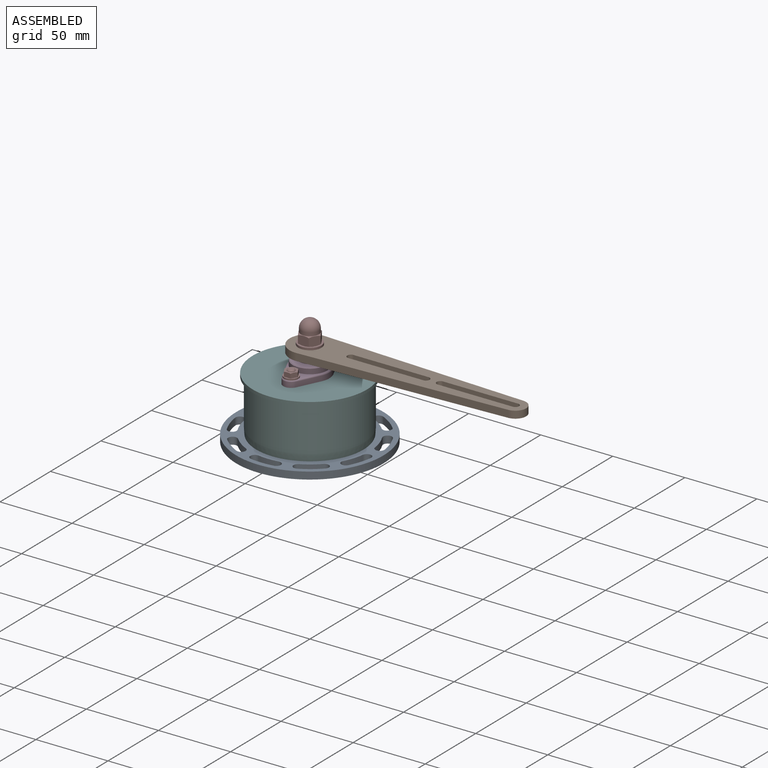
[diagram: assembled view]
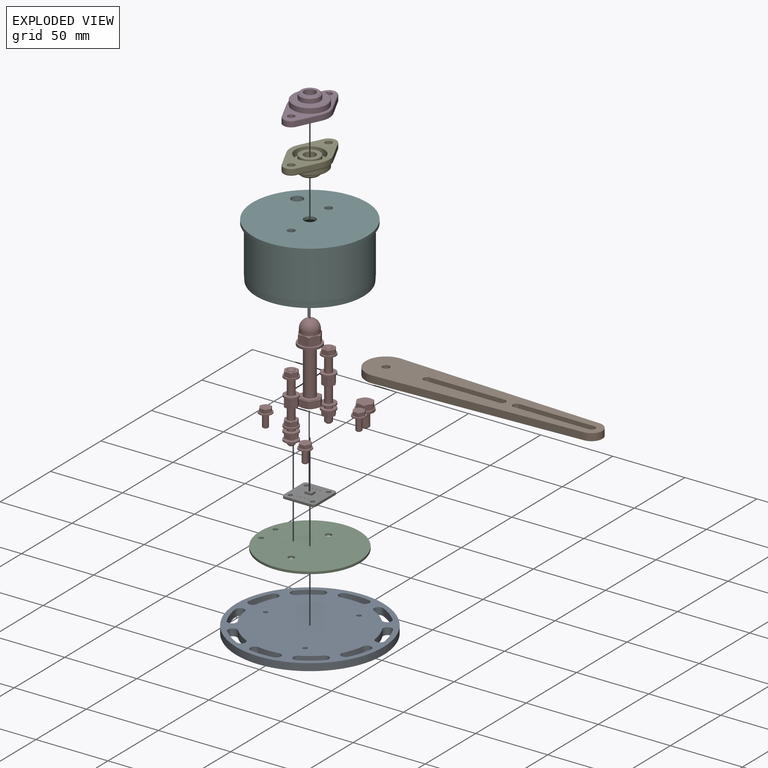
[diagram: exploded view]
GUIDED TOUR — FREECAD ASSEMBLY "RuderlageV2"

This assembly has 8 components, labeled P0..P7 below (a component is one placed body or linked part; the same part can appear more than once), held together by 0 modeled joints plus 12 derived contact edges. A joint is a constraint between two components; its type names the relative motion it leaves free:
  CONTACT — a derived adjacency edge — the two components touch in the source model (clearance under 2% of the assembly's diagonal); it is measured from the geometry, not a modeled constraint.
Axis/direction vectors are unit vectors and 'through' points are millimeter coordinates, both in the assembly's world frame.

MATES
  1. CONTACT "contact_0_5": P0 <-> P5, contact direction (0.000, 0.000, 1.000) through (-33.98, 0.00, 0.00) mm (derived from contact, not a modeled constraint)
  2. CONTACT "contact_0_7": P0 <-> P7, contact direction (0.000, 0.000, 1.000) through (8.93, 46.67, 0.00) mm (derived from contact, not a modeled constraint)
  3. CONTACT "contact_1_3": P1 <-> P3, contact direction (0.000, 0.000, -1.000) through (-2.27, -2.33, 50.91) mm (derived from contact, not a modeled constraint)
  4. CONTACT "contact_1_7": P1 <-> P7, contact direction (0.000, 0.000, -1.000) through (-0.75, -3.27, 55.95) mm (derived from contact, not a modeled constraint)
  5. CONTACT "contact_2_7": P2 <-> P7, contact direction (0.000, 0.000, 1.000) through (0.06, 20.87, 9.62) mm (derived from contact, not a modeled constraint)
  6. CONTACT "contact_3_4": P3 <-> P4, contact direction (0.000, 0.000, -1.000) through (-12.45, 5.23, 37.26) mm (derived from contact, not a modeled constraint)
  7. CONTACT "contact_3_5": P3 <-> P5, contact direction (0.000, 0.000, -1.000) through (-0.78, -16.18, 38.32) mm (derived from contact, not a modeled constraint)
  8. CONTACT "contact_3_7": P3 <-> P7, contact direction (0.000, 0.000, -1.000) through (0.12, 23.48, 42.72) mm (derived from contact, not a modeled constraint)
  9. CONTACT "contact_4_5": P4 <-> P5, contact direction (0.000, 0.000, -1.000) through (-0.78, -16.18, 36.19) mm (derived from contact, not a modeled constraint)
  10. CONTACT "contact_4_7": P4 <-> P7, contact direction (0.000, 0.000, -1.000) through (-1.11, -23.35, 31.79) mm (derived from contact, not a modeled constraint)
  11. CONTACT "contact_5_7": P5 <-> P7, contact direction (0.521, -0.108, -0.847) through (6.92, 37.32, 1.92) mm (derived from contact, not a modeled constraint)
  12. CONTACT "contact_6_7": P6 <-> P7, contact direction (0.000, 0.000, 1.000) through (2.37, 1.94, 17.57) mm (derived from contact, not a modeled constraint)

ASSEMBLY ORDER
  1. P7 — the base component [order heuristic]
  2. P5 — core [order heuristic]
  3. P4 — core [order heuristic]
  4. P6 — core [order heuristic]
  5. P2 [order verified]
  6. P3 — core [order heuristic]
  7. P0 — core [order heuristic]
  8. P1 [order verified]
Order-tag legend:
  [order verified] — this step's position reverses a verified removal order: the component was checked to insert without passing through the ones already placed.
  [order heuristic] — the first 6 components form the assembly's core: parts whose collision-free extraction could not be verified, listed in mate-graph order.

Of the 8 components, 7 carry a construction recipe — the FreeCAD feature program (sketches with constraints, then the solid features that consume them) that regenerates the part from scratch, quoted from this document or from the linked companion document it references; the rest are supplied as boundary geometry only. The tour below walks the components in assembly order: each is shown spotlighted twice — in the assembled view, then in the exploded view, where a leader line traces a displaced component back to its assembled socket (components that stay in place when exploded have no leader line; saturated green if recipe-attached, orange if geometry-only; every other component desaturated gray) — followed by its recipe or geometry summary and the mates that hold it.
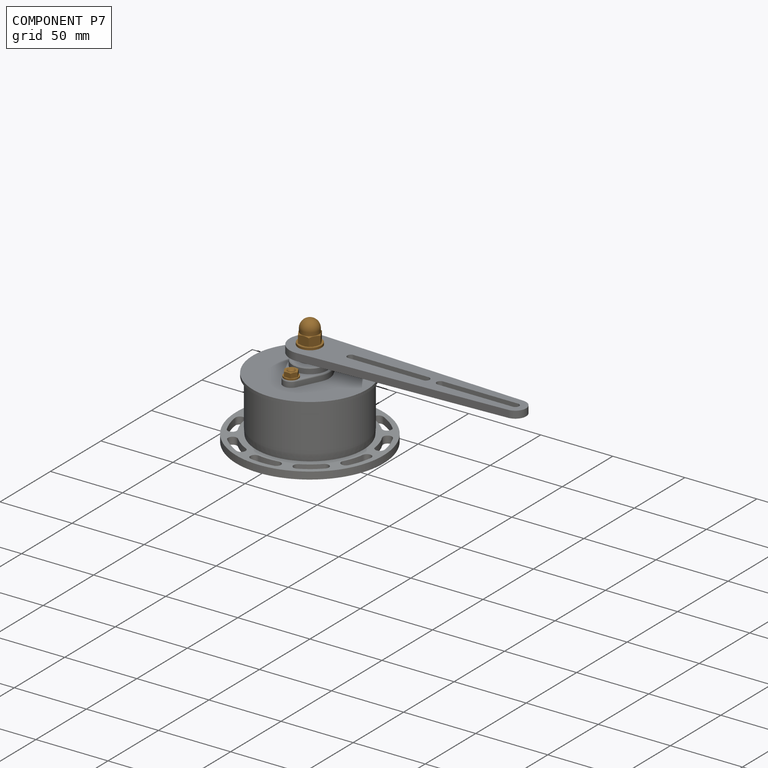
[diagram: component P7 — assembled]
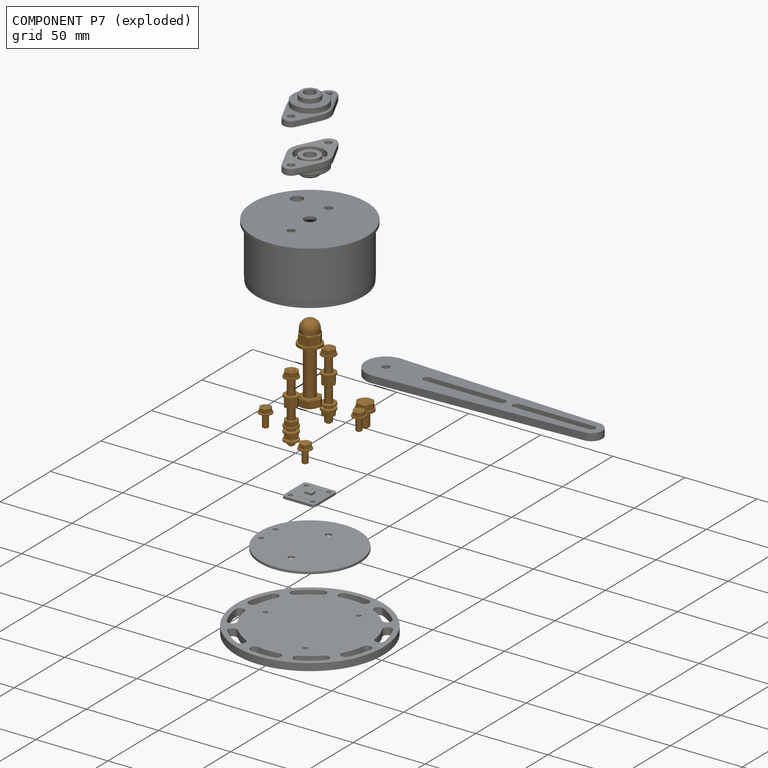
[diagram: component P7 — exploded]
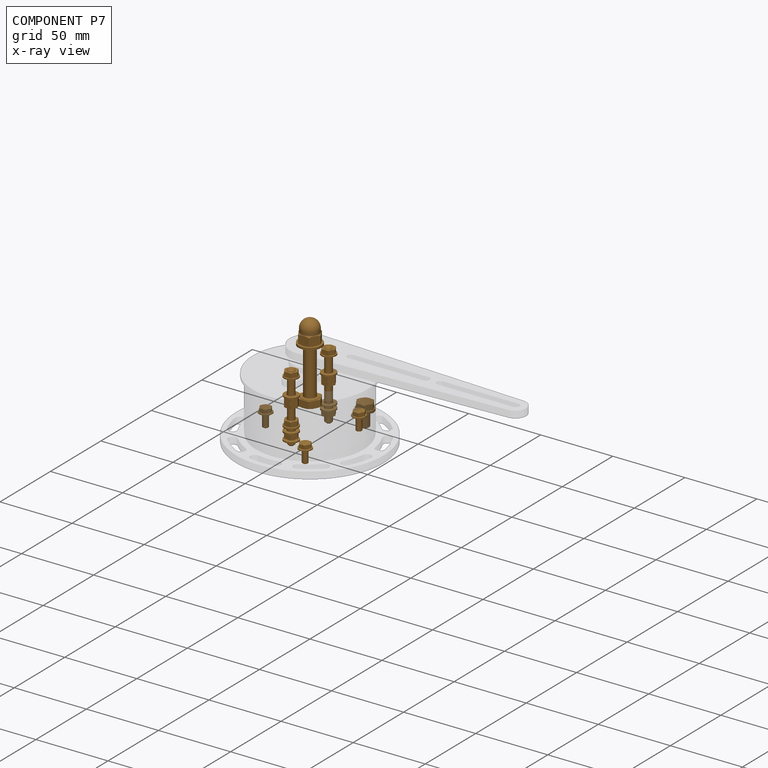
[diagram: component P7 — x-ray view]
COMPONENT P7 — geometry summary ("Fasteners"; no construction recipe available for this part):
  bounding box: 82.9 x 81.0 x 55.1 mm
  tessellated surface: 60,122 triangles
  volume: 9556 mm^3 (3% of its bounding box)
Held by: resting contact with P0 (derived edge); resting contact with P1 (derived edge); resting contact with P2 (derived edge); resting contact with P3 (derived edge); resting contact with P4 (derived edge); resting contact with P5 (derived edge); resting contact with P6 (derived edge).
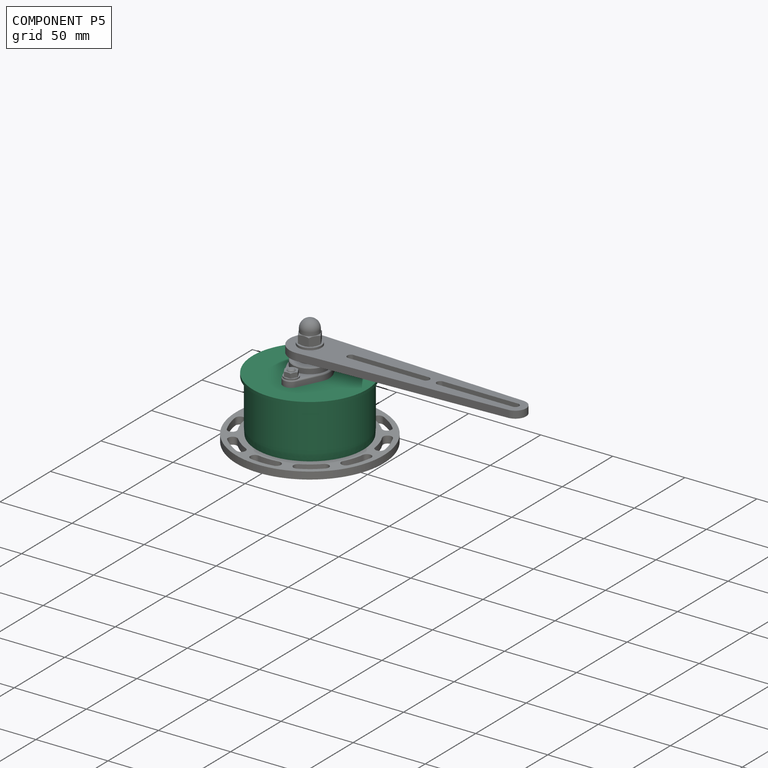
[diagram: component P5 — assembled]
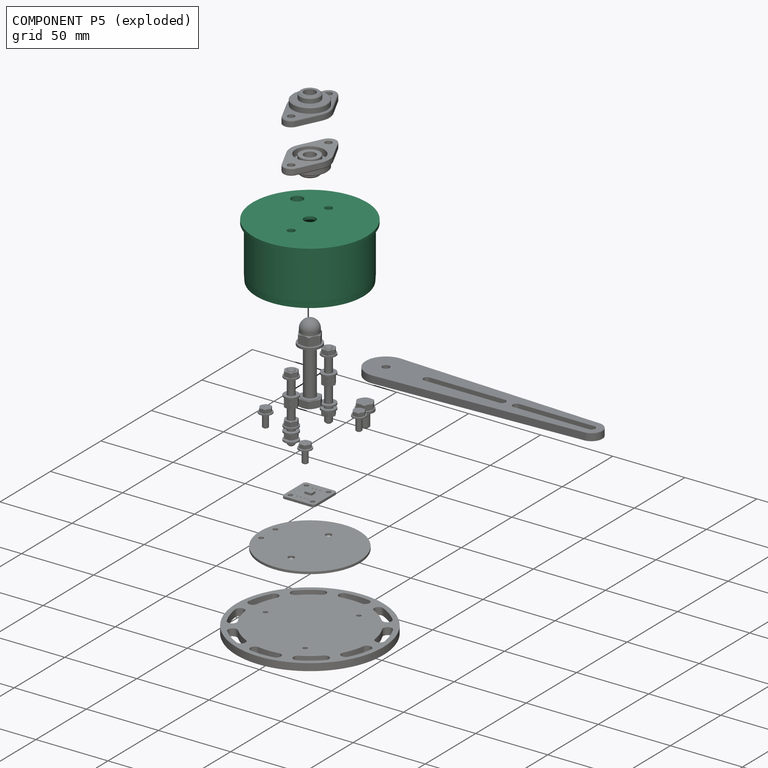
[diagram: component P5 — exploded]
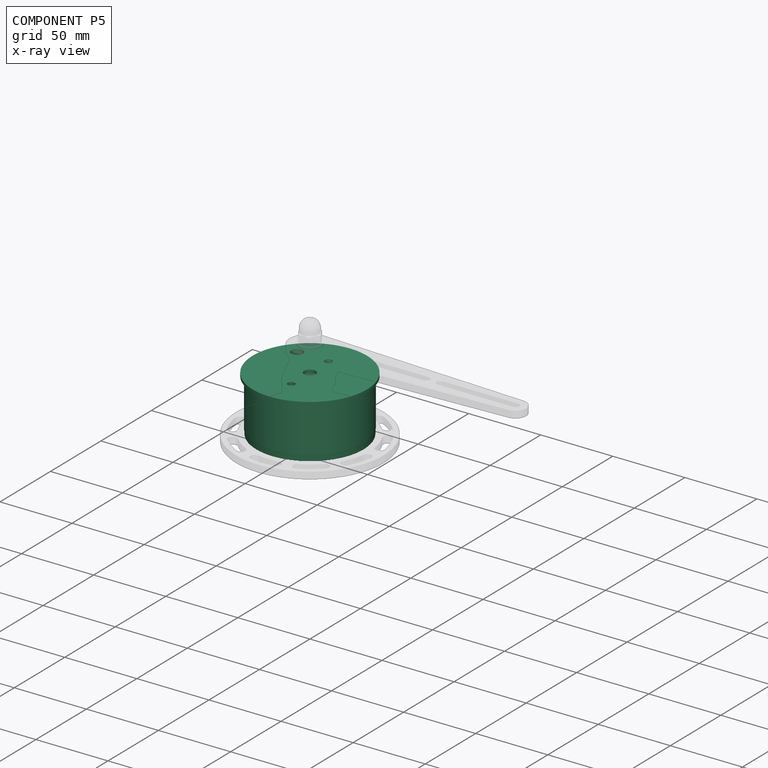
[diagram: component P5 — x-ray view]
COMPONENT P5 — same part as P3; its construction recipe is shown at P3.
Held by: resting contact with P0 (derived edge); resting contact with P3 (derived edge); resting contact with P4 (derived edge); resting contact with P7 (derived edge).
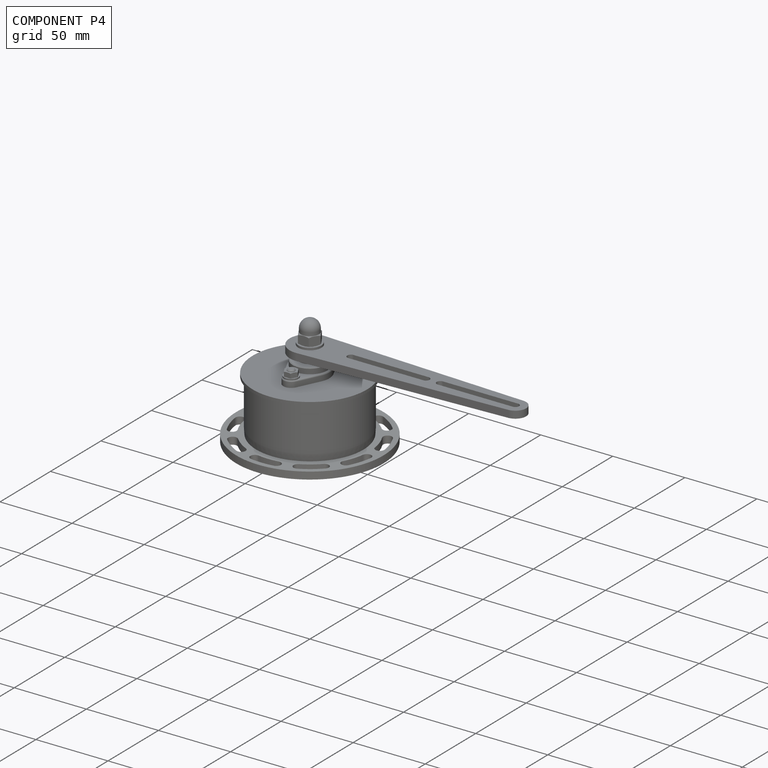
[diagram: component P4 — assembled]
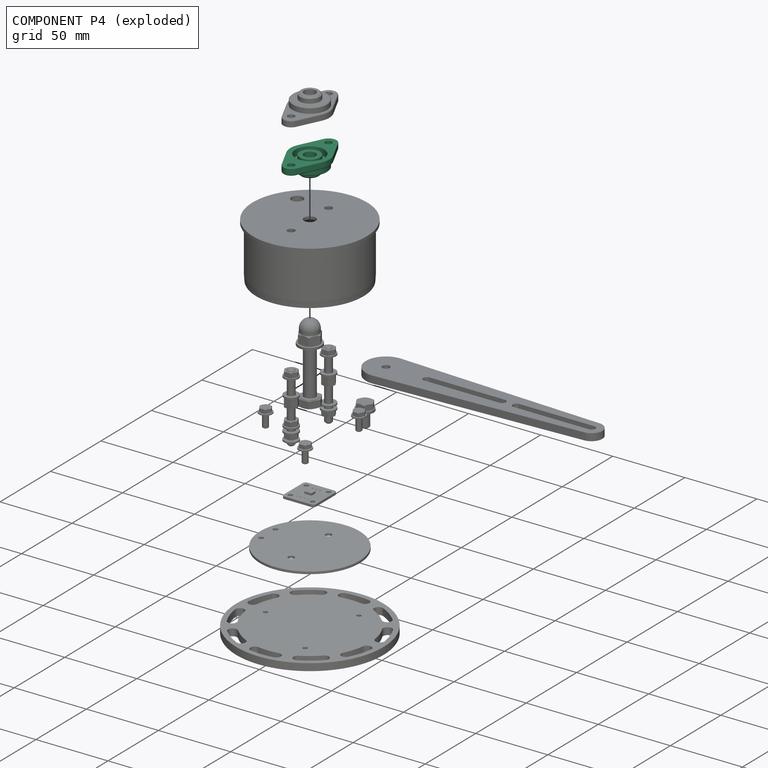
[diagram: component P4 — exploded]
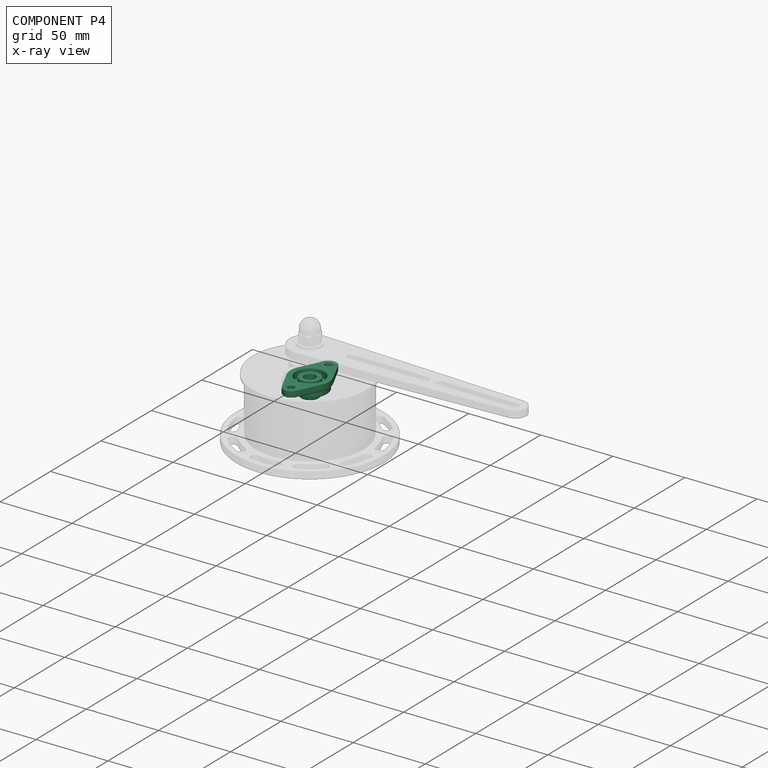
[diagram: component P4 — x-ray view]
COMPONENT P4 — same part as P3; its construction recipe is shown at P3.
Held by: resting contact with P3 (derived edge); resting contact with P5 (derived edge); resting contact with P7 (derived edge).
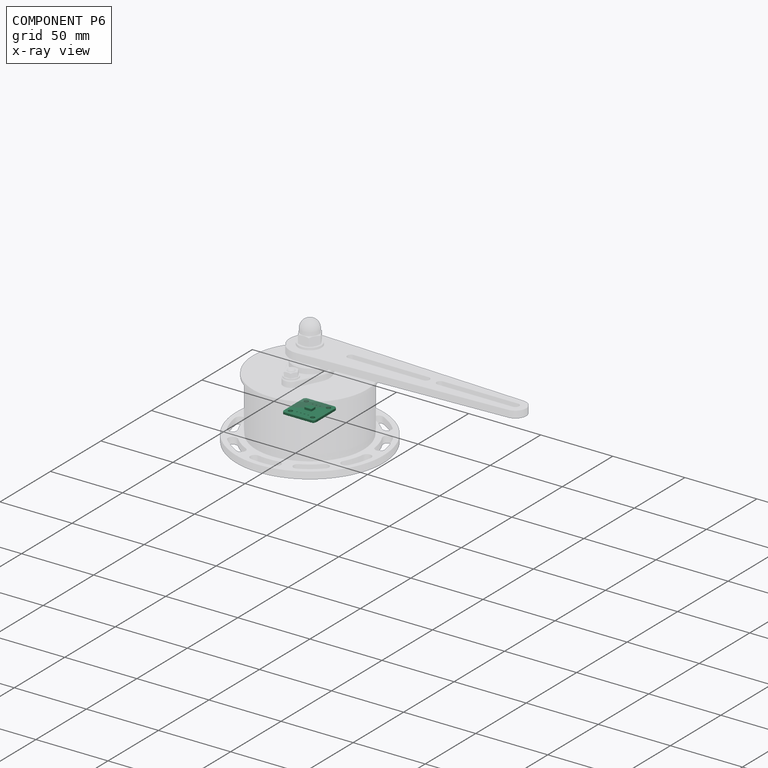
[diagram: component P6 — x-ray view]
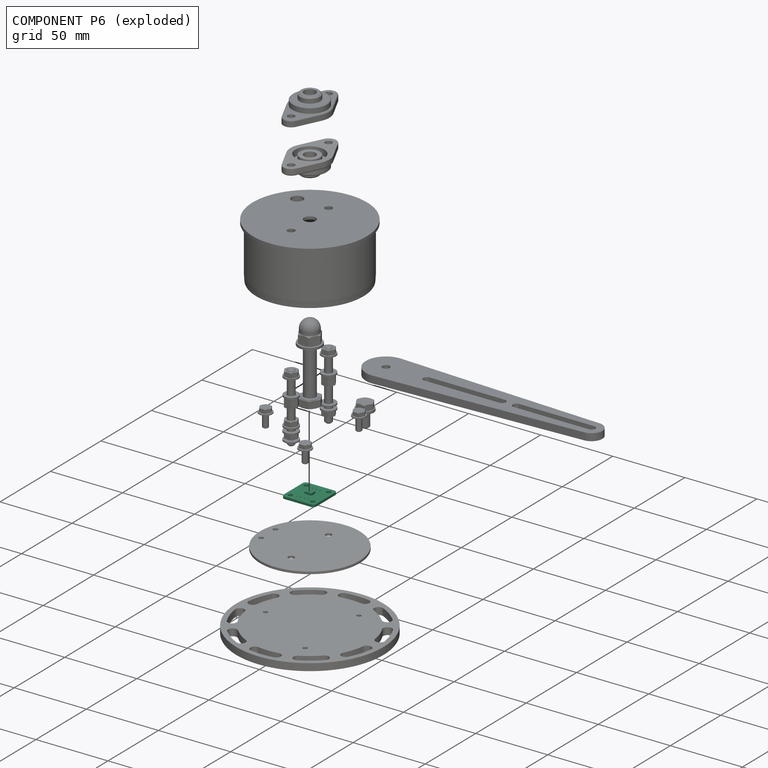
[diagram: component P6 — exploded]
COMPONENT P6 — recipe-attached ("Sensor", modeled in this document).
Held by: resting contact with P7 (derived edge).
Construction recipe (the document's own serialized feature program — sketch geometry with constraints, then the solid features built on it; lengths are millimeters unless a unit is written):

FEATURE [Sketcher::SketchObject] Sketch005
  ArcFitTolerance = 0
  AttachmentSupport = -> [XY_Plane005]
  FullyConstrained = true
  MakeInternals = false
  MapMode = 5
  expr: Constraints[8] = 19 mm / 2
  sketch-geometry (26):
    g0: LineSegment StartX=-11.45 StartY=9.25 StartZ=0 EndX=-11.45 EndY=-9.25 EndZ=0
    g1: LineSegment StartX=-9.45 StartY=-11.25 StartZ=0 EndX=9.45 EndY=-11.25 EndZ=0
    g2: LineSegment StartX=11.45 StartY=-9.25 StartZ=0 EndX=11.45 EndY=9.25 EndZ=0
    g3: LineSegment StartX=9.45 StartY=11.25 StartZ=0 EndX=-9.45 EndY=11.25 EndZ=0
    g4: GeomPoint [constr] X=3.063e-13 Y=-4.789e-13 Z=0
    g5: Circle CenterX=-7.86091 CenterY=7.69455 CenterZ=0 NormalX=0 NormalY=0 NormalZ=1 AngleXU=0 Radius=1.5
    g6: Circle CenterX=7.86091 CenterY=7.69455 CenterZ=0 NormalX=0 NormalY=0 NormalZ=1 AngleXU=0 Radius=1.5
    g7: Circle CenterX=-7.86091 CenterY=-7.69455 CenterZ=0 NormalX=0 NormalY=0 NormalZ=1 AngleXU=0 Radius=1.5
    g8: Circle CenterX=7.86091 CenterY=-7.69455 CenterZ=0 NormalX=0 NormalY=0 NormalZ=1 AngleXU=0 Radius=1.5
    g9: LineSegment [constr] StartX=-9.45 StartY=9.25 StartZ=0 EndX=9.45 EndY=-9.25 EndZ=0
    g10: LineSegment [constr] StartX=-9.45 StartY=-9.25 StartZ=0 EndX=9.45 EndY=9.25 EndZ=0
    g11: Circle [constr] CenterX=3.063e-13 CenterY=-4.789e-13 CenterZ=0 NormalX=0 NormalY=0 NormalZ=1 AngleXU=0 Radius=9.5
    g12: Circle [constr] CenterX=3.063e-13 CenterY=-4.789e-13 CenterZ=0 NormalX=0 NormalY=0 NormalZ=1 AngleXU=0 Radius=11
    g13: ArcOfCircle CenterX=-9.45 CenterY=9.25 CenterZ=0 NormalX=0 NormalY=0 NormalZ=1 AngleXU=0 Radius=2 StartAngle=1.5708 EndAngle=3.14159
    g14: ArcOfCircle CenterX=9.45 CenterY=9.25 CenterZ=0 NormalX=0 NormalY=0 NormalZ=1 AngleXU=0 Radius=2 StartAngle=-9.9352e-12 EndAngle=1.5708
    g15: ArcOfCircle CenterX=-9.45 CenterY=-9.25 CenterZ=0 NormalX=0 NormalY=0 NormalZ=1 AngleXU=0 Radius=2 StartAngle=3.14159 EndAngle=4.71239
    g16: ArcOfCircle CenterX=9.45 CenterY=-9.25 CenterZ=0 NormalX=0 NormalY=0 NormalZ=1 AngleXU=0 Radius=2 StartAngle=4.71239 EndAngle=6.28319
    g17: Circle CenterX=-6.78897 CenterY=2.54 CenterZ=0 NormalX=0 NormalY=0 NormalZ=1 AngleXU=0 Radius=0.45
    g18: Circle CenterX=-6.78897 CenterY=0 CenterZ=0 NormalX=0 NormalY=0 NormalZ=1 AngleXU=0 Radius=0.45
    g19: Circle CenterX=-6.78897 CenterY=-2.54 CenterZ=0 NormalX=0 NormalY=0 NormalZ=1 AngleXU=0 Radius=0.45
    g20: Circle CenterX=6.78897 CenterY=-1.27 CenterZ=0 NormalX=0 NormalY=0 NormalZ=1 AngleXU=0 Radius=0.45
    g21: Circle CenterX=6.78897 CenterY=-3.81 CenterZ=0 NormalX=0 NormalY=0 NormalZ=1 AngleXU=0 Radius=0.45
    g22: Circle CenterX=6.78897 CenterY=1.27 CenterZ=0 NormalX=0 NormalY=0 NormalZ=1 AngleXU=0 Radius=0.45
    g23: Circle CenterX=6.78897 CenterY=3.81 CenterZ=0 NormalX=0 NormalY=0 NormalZ=1 AngleXU=0 Radius=0.45
    g24: GeomPoint [constr] X=6.78897 Y=6.64529 Z=0
    g25: GeomPoint [constr] X=-6.78897 Y=6.64529 Z=0
  constraints (62):
    c: Horizontal(g1)
    c: Vertical(g0)
    c: Coincident(g4,g-1)
    c: Diameter(g5) = 3
    c: Equal(g5,g6)
    c: Equal(g5,g7)
    c: Equal(g5,g8)
    c: Coincident(g12,g4)
    c: Radius(g11) = 9.5
    c: Radius(g12) = 11
    c: Coincident(g11,g4)
    c: PointOnObject(g6,g10)
    c: PointOnObject(g6,g12)
    c: PointOnObject(g5,g9)
    c: PointOnObject(g5,g12)
    c: Tangent(g3,g13) = -1.5708
    c: Tangent(g0,g13) = -1.5708
    c: Tangent(g3,g14) = -1.5708
    c: Tangent(g2,g14) = -1.5708
    c: Tangent(g1,g15) = -1.5708
    c: Tangent(g0,g15) = -1.5708
    c: Tangent(g1,g16) = -1.5708
    c: Tangent(g2,g16) = -1.5708
    c: DistanceY(g1,g3) = 22.5
    c: DistanceX(g0,g2) = 22.9
    c: Radius(g13) = 2
    c: Equal(g13,g14)
    c: Equal(g13,g15)
    c: Equal(g13,g16)
    c: Symmetric(g6,g7,g4)
    c: PointOnObject(g8,g9)
    c: PointOnObject(g8,g12)
    c: Coincident(g13,g9)
    c: Coincident(g10,g14)
    c: Coincident(g10,g15)
    c: Coincident(g9,g16)
    c: Symmetric(g3,g3,g-2)
    c: Symmetric(g2,g2,g-1)
    c: Diameter(g17) = 0.9
    c: Equal(g17,g18)
    c: Equal(g17,g19)
    c: Vertical(g17,g18)
    c: Vertical(g17,g19)
    c: DistanceY(g18,g17) = 2.54
    c: DistanceY(g19,g18) = 2.54
    c: PointOnObject(g18,g-1)
    c: Equal(g17,g23)
    c: Equal(g17,g22)
    c: Equal(g17,g20)
    c: Equal(g17,g21)
    c: Vertical(g23,g22)
    c: Vertical(g23,g21)
    c: DistanceY(g22,g23) = 2.54
    c: DistanceY(g21,g20) = 2.54
    c: DistanceY(g20,g22) = 2.54
    c: Symmetric(g22,g20,g-1)
    c: PointOnObject(g24,g10)
    c: PointOnObject(g24,g11)
    c: Vertical(g23,g24)
    c: PointOnObject(g25,g9)
    c: PointOnObject(g25,g11)
    c: Vertical(g25,g17)
FEATURE [PartDesign::Pad] Pad006
  Direction = (0,0,1)
  Length = 1.6
  Length2 = 10
  Profile = -> Sketch005
  ReferenceAxis = -> Sketch005 [N_Axis]
  Suppressed = false
  Type = 0
FEATURE [Sketcher::SketchObject] Sketch006
  ArcFitTolerance = 0
  AttachmentSupport = -> [XY_Plane006]
  FullyConstrained = true
  MakeInternals = false
  MapMode = 5
  sketch-geometry (5):
    g0: LineSegment StartX=-2.45 StartY=1.95 StartZ=0 EndX=-2.45 EndY=-1.95 EndZ=0
    g1: LineSegment StartX=-2.45 StartY=-1.95 StartZ=0 EndX=2.45 EndY=-1.95 EndZ=0
    g2: LineSegment StartX=2.45 StartY=-1.95 StartZ=0 EndX=2.45 EndY=1.95 EndZ=0
    g3: LineSegment StartX=2.45 StartY=1.95 StartZ=0 EndX=-2.45 EndY=1.95 EndZ=0
    g4: GeomPoint [constr] X=0 Y=0 Z=0
  constraints (12):
    c: Coincident(g0,g1)
    c: Coincident(g1,g2)
    c: Coincident(g2,g3)
    c: Coincident(g3,g0)
    c: Horizontal(g1)
    c: Horizontal(g3)
    c: Vertical(g0)
    c: Vertical(g2)
    c: Symmetric(g1,g0,g4)
    c: Coincident(g4,g-1)
    c: DistanceX(g3,g3) = 4.9
    c: DistanceY(g1,g2) = 3.9
FEATURE [PartDesign::Pad] Pad005
  Direction = (0,0,1)
  Length = 1.75
  Length2 = 10
  Profile = -> Sketch006
  ReferenceAxis = -> Sketch006 [N_Axis]
  Suppressed = false
  Type = 0
FEATURE [PartDesign::Body] Body005  label="Soic8"
  AllowCompound = false
  Group = -> [Sketch006,Pad005]
  Origin = -> Origin006
  Placement = pos=(0,0,1.7) rot=(0,0,1;1.5708rad)
  Tip = -> Pad005
FEATURE [Sketcher::SketchObject] Sketch007
  ArcFitTolerance = 0
  AttachmentSupport = -> [XY_Plane005]
  FullyConstrained = true
  MakeInternals = false
  MapMode = 5
FEATURE [PartDesign::Body] Body004  label="Platine"
  AllowCompound = false
  Group = -> [Sketch005,Pad006,Sketch007]
  Origin = -> Origin005
  Placement = pos=(0.166369,-0.166369,0.4) rot=(0,0,1;0rad)
  Tip = -> Pad006
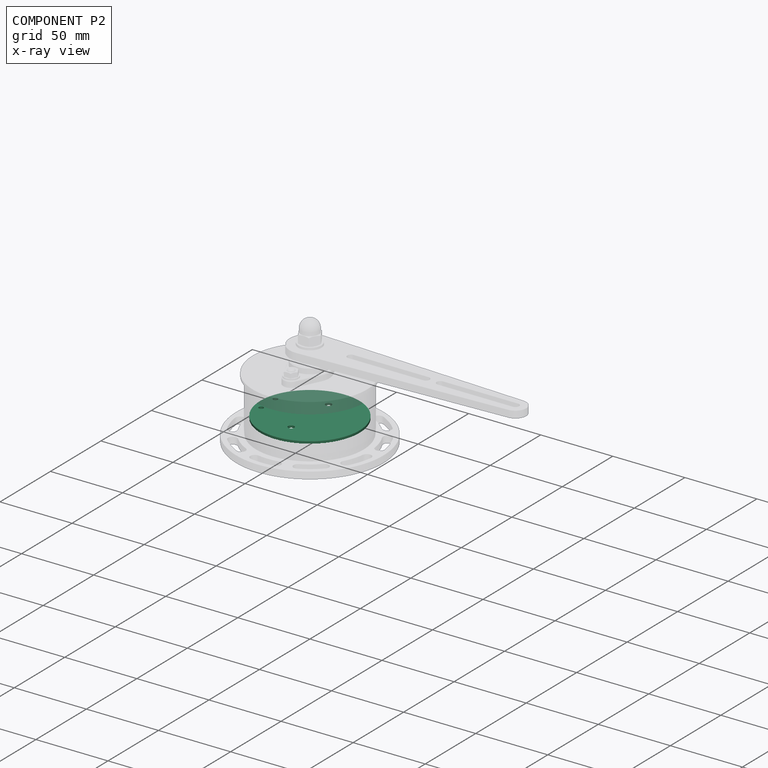
[diagram: component P2 — x-ray view]
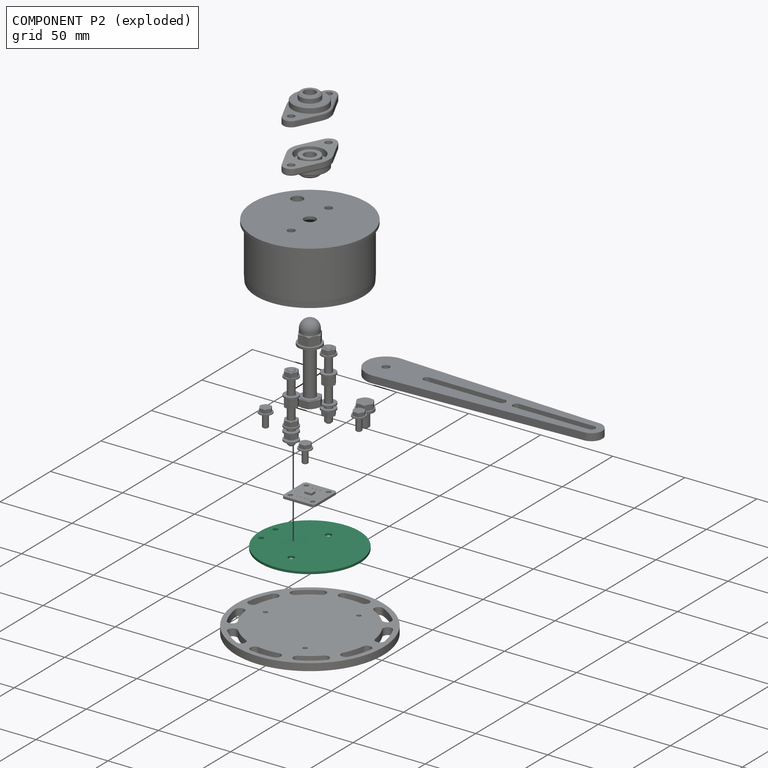
[diagram: component P2 — exploded]
COMPONENT P2 — recipe-attached ("MotherBoard", modeled in this document).
Held by: resting contact with P7 (derived edge).
Construction recipe (the document's own serialized feature program — sketch geometry with constraints, then the solid features built on it; lengths are millimeters unless a unit is written):

FEATURE [Sketcher::SketchObject] Sketch023
  ArcFitTolerance = 1e-06
  AttachmentSupport = -> [XY_Plane022]
  FullyConstrained = true
  MakeInternals = false
  MapMode = 5
  sketch-geometry (21):
    g0: Circle CenterX=1e-16 CenterY=0 CenterZ=0 NormalX=0 NormalY=0 NormalZ=1 AngleXU=0 Radius=34.5
    g1: Circle CenterX=0 CenterY=18.5 CenterZ=0 NormalX=0 NormalY=0 NormalZ=1 AngleXU=0 Radius=2.1
    g2: Circle CenterX=0 CenterY=-18.5 CenterZ=0 NormalX=0 NormalY=0 NormalZ=1 AngleXU=0 Radius=2.1
    g3: Circle [constr] CenterX=1e-16 CenterY=0 CenterZ=0 NormalX=0 NormalY=0 NormalZ=1 AngleXU=0 Radius=18.5
    g4: Circle [constr] CenterX=-3.64 CenterY=6.96 CenterZ=0 NormalX=0 NormalY=0 NormalZ=1 AngleXU=0 Radius=0.4
    g5: Circle [constr] CenterX=-1.1 CenterY=6.96 CenterZ=0 NormalX=0 NormalY=0 NormalZ=1 AngleXU=0 Radius=0.4
    g6: Circle [constr] CenterX=1.44 CenterY=6.96 CenterZ=0 NormalX=0 NormalY=0 NormalZ=1 AngleXU=0 Radius=0.4
    g7: Circle [constr] CenterX=3.98 CenterY=6.96 CenterZ=0 NormalX=0 NormalY=0 NormalZ=1 AngleXU=0 Radius=0.4
    g8: Circle [constr] CenterX=-2.37 CenterY=-6.62 CenterZ=0 NormalX=0 NormalY=0 NormalZ=1 AngleXU=0 Radius=0.4
    g9: Circle [constr] CenterX=0.17 CenterY=-6.62 CenterZ=0 NormalX=0 NormalY=0 NormalZ=1 AngleXU=0 Radius=0.4
    g10: Circle [constr] CenterX=2.71 CenterY=-6.62 CenterZ=0 NormalX=0 NormalY=0 NormalZ=1 AngleXU=0 Radius=0.4
    g11: LineSegment [constr] StartX=-9.08 StartY=11.62 StartZ=0 EndX=9.42 EndY=11.62 EndZ=0
    g12: ArcOfCircle [constr] CenterX=9.42 CenterY=9.62 CenterZ=0 NormalX=0 NormalY=0 NormalZ=1 AngleXU=0 Radius=2 StartAngle=7e-16 EndAngle=1.5708
    g13: LineSegment [constr] StartX=11.42 StartY=9.62 StartZ=0 EndX=11.42 EndY=-9.28 EndZ=0
    g14: ArcOfCircle [constr] CenterX=9.42 CenterY=-9.28 CenterZ=0 NormalX=0 NormalY=0 NormalZ=1 AngleXU=0 Radius=2 StartAngle=4.71239 EndAngle=6.28319
    g15: LineSegment [constr] StartX=9.42 StartY=-11.28 StartZ=0 EndX=-9.08 EndY=-11.28 EndZ=0
    g16: ArcOfCircle [constr] CenterX=-9.08 CenterY=-9.28 CenterZ=0 NormalX=0 NormalY=0 NormalZ=1 AngleXU=0 Radius=2 StartAngle=3.14159 EndAngle=4.71239
    g17: LineSegment [constr] StartX=-11.08 StartY=-9.28 StartZ=0 EndX=-11.08 EndY=9.62 EndZ=0
    g18: ArcOfCircle [constr] CenterX=-9.08 CenterY=9.62 CenterZ=0 NormalX=0 NormalY=0 NormalZ=1 AngleXU=0 Radius=2 StartAngle=1.5708 EndAngle=3.14159
    g19: Circle CenterX=-28.85 CenterY=7.05 CenterZ=0 NormalX=0 NormalY=0 NormalZ=1 AngleXU=0 Radius=1.6
    g20: Circle CenterX=-28.85 CenterY=-7.05 CenterZ=0 NormalX=0 NormalY=0 NormalZ=1 AngleXU=0 Radius=1.6
  constraints (59):
    c: Coincident(g0,g-1)
    c: Diameter(g0) = 69
    c: Diameter(g1) = 4.2
    c: Equal(g1,g2)
    c: Coincident(g3,g0)
    c: PointOnObject(g1,g3)
    c: Diameter(g3) = 37
    c: PointOnObject(g1,g-2)
    c: PointOnObject(g2,g3)
    c: PointOnObject(g2,g-2)
    c: Diameter(g4) = 0.8
    c: Equal(g8,g9)
    c: Equal(g9,g10)
    c: Equal(g10,g7)
    c: Equal(g7,g6)
    c: Equal(g6,g5)
    c: Horizontal(g6,g7)
    c: Horizontal(g8,g9)
    c: Horizontal(g9,g10)
    c: DistanceX(g8,g9) = 2.54
    c: DistanceX(g9,g10) = 2.54
    c: DistanceX(g4,g5) = 2.54
    c: DistanceX(g5,g6) = 2.54
    c: DistanceX(g6,g7) = 2.54
    c: DistanceX(g0,g9) = 0.17
    c: DistanceX(g5,g0) = 1.1
    c: DistanceY(g8,g4) = 13.58
    c: DistanceY(g0,g4) = 6.96
    c: Equal(g4,g5)
    c: Horizontal(g5,g6)
    c: Tangent(g11,g12) = 1.5708
    c: Coincident(g12,g13)
    c: Tangent(g13,g14) = 1.5708
    c: Tangent(g14,g15) = 1.5708
    c: Tangent(g15,g16) = 1.5708
    c: Coincident(g16,g17)
    c: Tangent(g17,g18) = 1.5708
    c: Coincident(g18,g11)
    c: Equal(g18,g12)
    c: Equal(g12,g16)
    c: Equal(g16,g14)
    c: Radius(g16) = 2
    c: Horizontal(g11)
    c: Horizontal(g15)
    c: Vertical(g17)
    c: Vertical(g13)
    c: DistanceX(g15,g15) = 18.5
    c: DistanceY(g17,g17) = 18.9
    c: DistanceX(g17,g0) = 11.08
    c: DistanceY(g0,g17) = 9.62
    c: Equal(g17,g13)
    c: Equal(g11,g15)
    c: Horizontal(g16,g13)
    c: Horizontal(g4,g5)
    c: Equal(g19,g20)
    c: Diameter(g19) = 3.2
    c: DistanceY(g20,g19) = 14.1
    c: Symmetric(g19,g20,g-1)
    c: DistanceX(g19,g0) = 28.85
FEATURE [PartDesign::Pad] Pad019
  Direction = (0,0,1)
  Length = 1.6
  Length2 = 10
  Profile = -> Sketch023
  ReferenceAxis = -> Sketch023 [N_Axis]
  Suppressed = false
  Type = 0
FEATURE [PartDesign::Body] Body018  label="MotherBoard"
  AllowCompound = false
  Group = -> [Sketch023,Pad019]
  Origin = -> Origin022
  Placement = pos=(5.11e-14,-3.6e-15,9.7143) rot=(0,0,1;0rad)
  Tip = -> Pad019
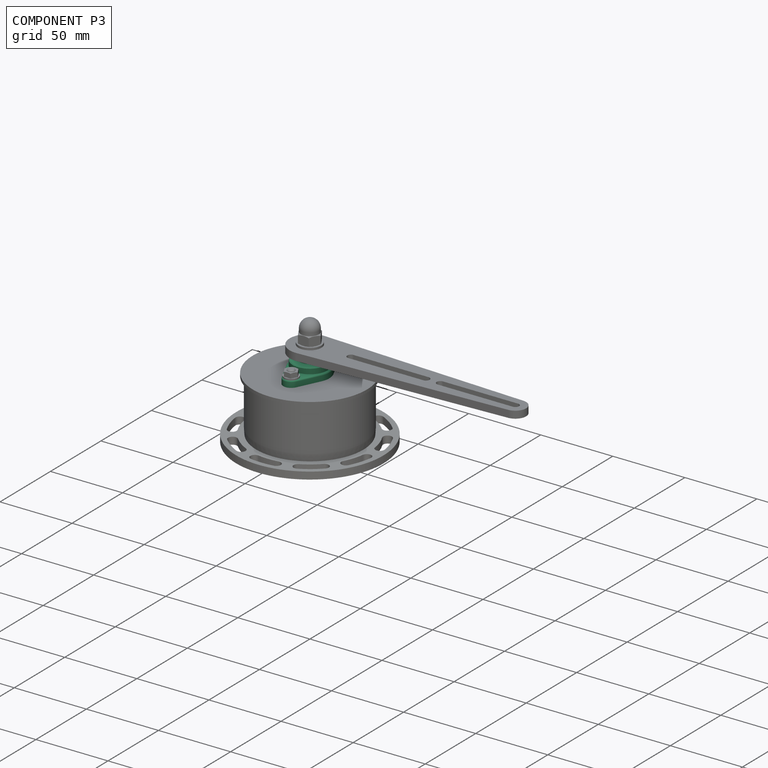
[diagram: component P3 — assembled]
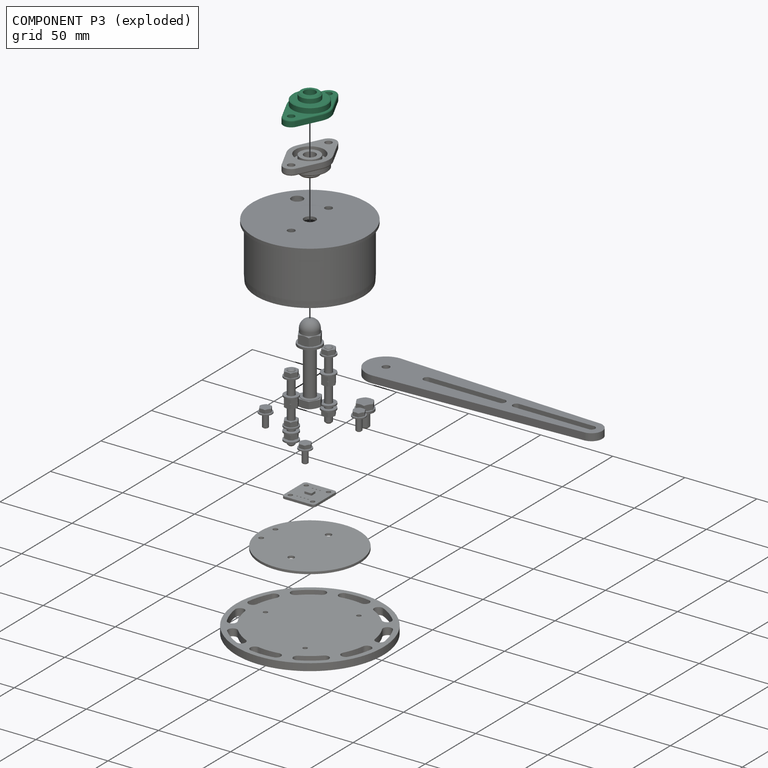
[diagram: component P3 — exploded]
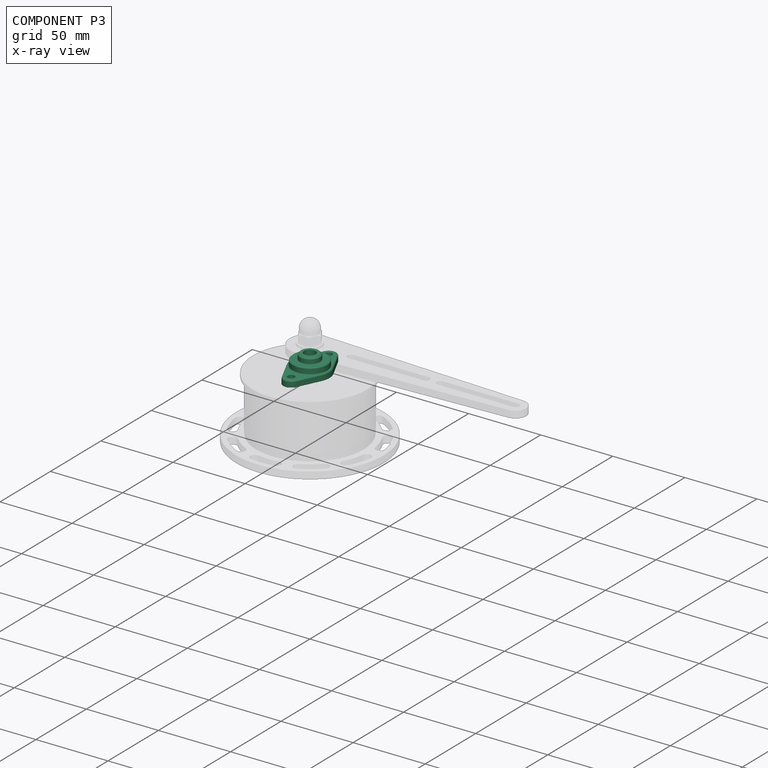
[diagram: component P3 — x-ray view]
COMPONENT P3 — recipe-attached ("LagerTop", modeled in this document).
Held by: resting contact with P1 (derived edge); resting contact with P4 (derived edge); resting contact with P5 (derived edge); resting contact with P7 (derived edge).
Construction recipe (the document's own serialized feature program — sketch geometry with constraints, then the solid features built on it; lengths are millimeters unless a unit is written):

FEATURE [Sketcher::SketchObject] Sketch
  ArcFitTolerance = 1e-06
  AttachmentSupport = -> [XY_Plane]
  FullyConstrained = true
  MakeInternals = false
  MapMode = 5
  sketch-geometry (17):
    g0: Circle CenterX=-8.72817e-11 CenterY=-1.54759e-11 CenterZ=0 NormalX=0 NormalY=0 NormalZ=1 AngleXU=0 Radius=35.75
    g1: Circle CenterX=-18.5 CenterY=-4.035e-13 CenterZ=0 NormalX=0 NormalY=0 NormalZ=1 AngleXU=0 Radius=1.6
    g2: Circle CenterX=18.5 CenterY=-2.90037e-11 CenterZ=0 NormalX=0 NormalY=0 NormalZ=1 AngleXU=0 Radius=1.6
    g3: LineSegment [constr] StartX=21.6506 StartY=12.5 StartZ=0 EndX=-21.6506 EndY=12.5 EndZ=0
    g4: LineSegment [constr] StartX=-21.6506 StartY=12.5 StartZ=0 EndX=-1.03665e-10 EndY=-25 EndZ=0
    g5: LineSegment [constr] StartX=-1.03665e-10 StartY=-25 StartZ=0 EndX=21.6506 EndY=12.5 EndZ=0
    g6: Circle [constr] CenterX=-8.72817e-11 CenterY=-1.54759e-11 CenterZ=0 NormalX=0 NormalY=0 NormalZ=1 AngleXU=0 Radius=25
    g7: Circle CenterX=-21.6506 CenterY=12.5 CenterZ=0 NormalX=0 NormalY=0 NormalZ=1 AngleXU=0 Radius=5
    g8: Circle CenterX=21.6506 CenterY=12.5 CenterZ=0 NormalX=0 NormalY=0 NormalZ=1 AngleXU=0 Radius=5
    g9: Circle CenterX=-1.03665e-10 CenterY=-25 CenterZ=0 NormalX=0 NormalY=0 NormalZ=1 AngleXU=0 Radius=5
    g10: LineSegment [constr] StartX=2.63434e-11 StartY=30.75 StartZ=0 EndX=-26.6303 EndY=-15.375 EndZ=0
    g11: LineSegment [constr] StartX=-26.6303 StartY=-15.375 StartZ=0 EndX=26.6303 EndY=-15.375 EndZ=0
    g12: LineSegment [constr] StartX=26.6303 StartY=-15.375 StartZ=0 EndX=2.63434e-11 EndY=30.75 EndZ=0
    g13: Circle [constr] CenterX=-8.72817e-11 CenterY=-1.54759e-11 CenterZ=0 NormalX=0 NormalY=0 NormalZ=1 AngleXU=0 Radius=30.75
    g14: Circle CenterX=2.63434e-11 CenterY=30.75 CenterZ=0 NormalX=0 NormalY=0 NormalZ=1 AngleXU=0 Radius=2
    g15: Circle CenterX=-26.6303 CenterY=-15.375 CenterZ=0 NormalX=0 NormalY=0 NormalZ=1 AngleXU=0 Radius=2
    g16: Circle CenterX=26.6303 CenterY=-15.375 CenterZ=0 NormalX=0 NormalY=0 NormalZ=1 AngleXU=0 Radius=2
  constraints (41):
    c: Diameter(g0) = 71.5
    c: PointOnObject(g1,g-1)
    c: Equal(g1,g2)
    c: Diameter(g1) = 3.2
    c: Symmetric(g1,g2,g0)
    c: DistanceX(g1,g2) = 37
    c: Symmetric(g1,g2,g-2)
    c: Coincident(g3,g4)
    c: Coincident(g4,g5)
    c: Coincident(g5,g3)
    c: Equal(g3,g4)
    c: Equal(g3,g5)
    c: PointOnObject(g3,g6)
    c: PointOnObject(g4,g6)
    c: PointOnObject(g5,g6)
    c: Coincident(g6,g0)
    c: Horizontal(g3)
    c: Coincident(g7,g3)
    c: Diameter(g7) = 10
    c: Diameter(g6) = 50
    c: Coincident(g8,g3)
    c: Coincident(g9,g4)
    c: Equal(g7,g8)
    c: Equal(g8,g9)
    c: Coincident(g10,g11)
    c: Coincident(g11,g12)
    c: Coincident(g12,g10)
    c: Equal(g10,g11)
    c: Equal(g10,g12)
    c: PointOnObject(g10,g13)
    c: PointOnObject(g11,g13)
    c: PointOnObject(g12,g13)
    c: Coincident(g13,g0)
    c: PointOnObject(g12,g-2)
    c: Diameter(g13) = 61.5
    c: Coincident(g14,g10)
    c: Diameter(g14) = 4
    c: Coincident(g15,g10)
    c: Coincident(g16,g11)
    c: Equal(g14,g15)
    c: Equal(g15,g16)
FEATURE [PartDesign::Pad] Pad
  Direction = (0,0,1)
  Length = 5
  Length2 = 10
  Profile = -> Sketch
  ReferenceAxis = -> Sketch [N_Axis]
  Suppressed = false
  Type = 0
FEATURE [PartDesign::Body] Body  label="Montageplatte"
  AllowCompound = false
  Group = -> [Sketch,Pad]
  Origin = -> Origin
  Placement = pos=(0,0,0) rot=(0,0,1;1.5708rad)
  Tip = -> Pad
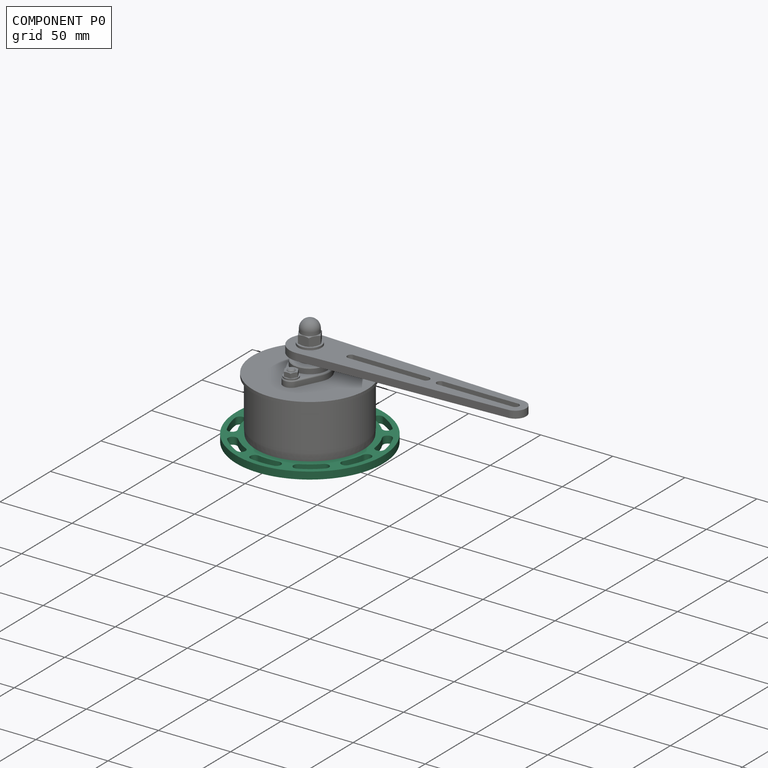
[diagram: component P0 — assembled]
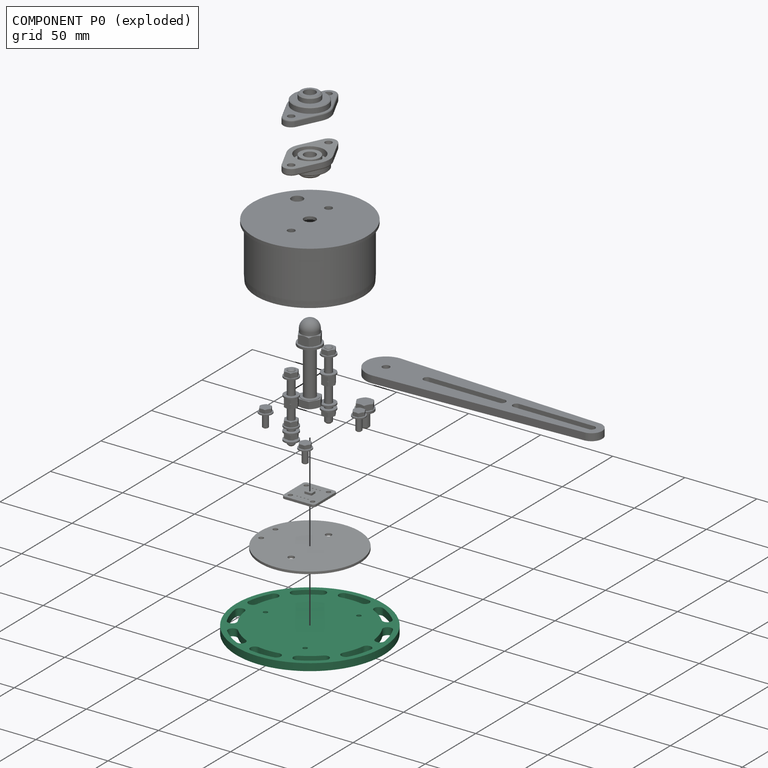
[diagram: component P0 — exploded]
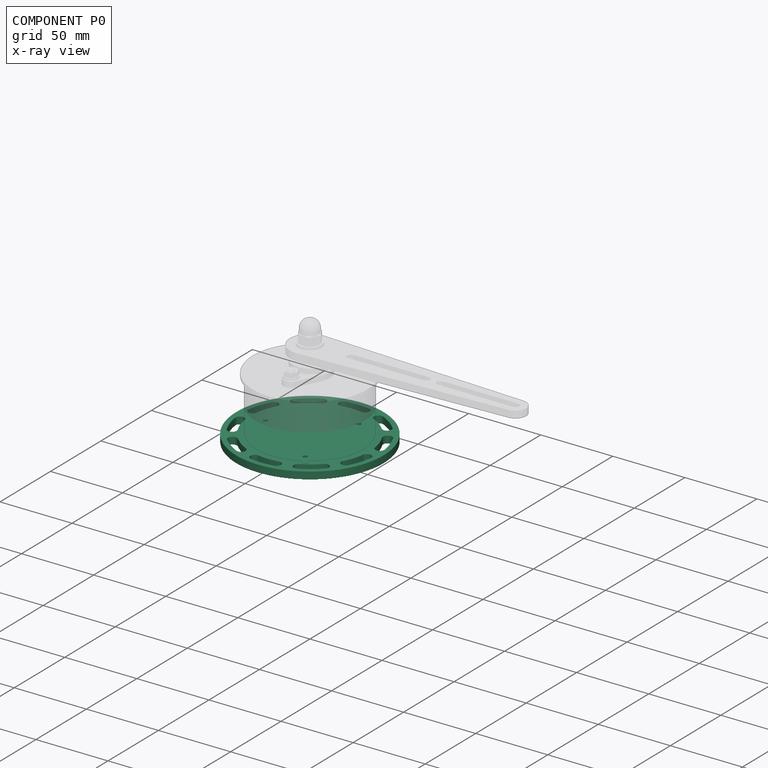
[diagram: component P0 — x-ray view]
COMPONENT P0 — recipe-attached ("Montageplatte1", modeled in this document).
Held by: resting contact with P5 (derived edge); resting contact with P7 (derived edge).
Construction recipe (the document's own serialized feature program — sketch geometry with constraints, then the solid features built on it; lengths are millimeters unless a unit is written):

FEATURE [PartDesign::SubShapeBinder] Binder
  BindCopyOnChange = 0
  BindMode = 0
  ClaimChildren = false
  Context = -> Body012 [Binder.]
  Fuse = false
  MakeFace = true
  OffsetFill = false
  OffsetIntersection = false
  OffsetJoinType = 0
  OffsetOpenResult = false
  PartialLoad = false
  Relative = true
  Support = -> [Body[Pad.Face10]]
  _Version = 2
FEATURE [Sketcher::SketchObject] Sketch015
  ArcFitTolerance = 1e-06
  AttachmentSupport = -> [XY_Plane015]
  ExternalGeometry = -> [Binder]
  FullyConstrained = true
  MakeInternals = false
  MapMode = 5
  sketch-geometry (5):
    g0: Circle CenterX=-1.952e-13 CenterY=-3.03e-14 CenterZ=0 NormalX=0 NormalY=0 NormalZ=1 AngleXU=0 Radius=51
    g1: Circle [constr] CenterX=-1.952e-13 CenterY=-3.03e-14 CenterZ=0 NormalX=0 NormalY=0 NormalZ=1 AngleXU=0 Radius=44.5
    g2: Circle CenterX=15.375 CenterY=26.6303 CenterZ=0 NormalX=0 NormalY=0 NormalZ=1 AngleXU=0 Radius=1.5
    g3: Circle CenterX=-30.75 CenterY=0 CenterZ=0 NormalX=0 NormalY=0 NormalZ=1 AngleXU=0 Radius=1.5
    g4: Circle CenterX=15.375 CenterY=-26.6303 CenterZ=0 NormalX=0 NormalY=0 NormalZ=1 AngleXU=0 Radius=1.5
  constraints (10):
    c: Coincident(g0,g-1)
    c: Coincident(g1,g0)
    c: Diameter(g1) = 89
    c: Diameter(g0) = 102
    c: Coincident(g2,g-3)
    c: Coincident(g3,g-4)
    c: Coincident(g4,g-5)
    c: Diameter(g2) = 3
    c: Equal(g2,g4)
    c: Equal(g4,g3)
FEATURE [PartDesign::Pad] Pad013
  Direction = (0,0,1)
  Length = 5
  Length2 = 10
  Profile = -> Sketch015
  ReferenceAxis = -> Sketch015 [N_Axis]
  Reversed = true
  Suppressed = false
  Type = 0
FEATURE [Sketcher::SketchObject] Sketch025
  ArcFitTolerance = 1e-06
  AttachmentSupport = -> [XY_Plane015]
  FullyConstrained = true
  MakeInternals = false
  MapMode = 5
  sketch-geometry (5):
    g0: Circle [constr] CenterX=2.55e-14 CenterY=-1.493e-13 CenterZ=0 NormalX=0 NormalY=0 NormalZ=1 AngleXU=0 Radius=44.5
    g1: ArcOfCircle CenterX=-3.38705e-10 CenterY=-5.80688e-11 CenterZ=0 NormalX=0 NormalY=0 NormalZ=1 AngleXU=0 Radius=47.6 StartAngle=1.40145 EndAngle=1.74014
    g2: ArcOfCircle CenterX=-7.5 CenterY=43.8634 CenterZ=0 NormalX=0 NormalY=0 NormalZ=1 AngleXU=0 Radius=3.1 StartAngle=1.74014 EndAngle=4.88174
    g3: ArcOfCircle CenterX=7.5 CenterY=43.8634 CenterZ=0 NormalX=0 NormalY=0 NormalZ=1 AngleXU=0 Radius=3.1 StartAngle=4.54304 EndAngle=7.68463
    g4: ArcOfCircle CenterX=-3.38705e-10 CenterY=-5.80688e-11 CenterZ=0 NormalX=0 NormalY=0 NormalZ=1 AngleXU=0 Radius=41.4 StartAngle=1.40145 EndAngle=1.74014
  constraints (12):
    c: Diameter(g0) = 89
    c: Coincident(g1,g4)
    c: Tangent(g4,g3) = 1.5708
    c: Tangent(g4,g2) = 1.5708
    c: Tangent(g1,g3) = -1.5708
    c: Tangent(g1,g2) = -1.5708
    c: Radius(g3) = 3.1
    c: PointOnObject(g2,g0)
    c: DistanceX(g2,g3) = 15
    c: Coincident(g-1,g0)
    c: Symmetric(g2,g3,g-2)
    c: Radius(g4) = 41.4
FEATURE [PartDesign::Pocket] Pocket001
  BaseFeature = -> Pad013
  Direction = (0,0,-1)
  Length = 5
  Length2 = 5
  Profile = -> Sketch025
  ReferenceAxis = -> Sketch025 [N_Axis]
  Suppressed = false
  Type = 0
FEATURE [PartDesign::PolarPattern] PolarPattern
  Angle = 360
  Axis = -> Sketch025 [N_Axis]
  BaseFeature = -> Pocket001
  Mode = 0
  Occurrences = 10
  Offset = 120
  Originals = -> [Pocket001]
  Suppressed = false
  TransformMode = 0
FEATURE [PartDesign::Body] Body012  label="Montageplatte1"
  AllowCompound = false
  Group = -> [Sketch015,Pad013,Binder,Sketch025,Pocket001,PolarPattern]
  Origin = -> Origin015
  Tip = -> PolarPattern
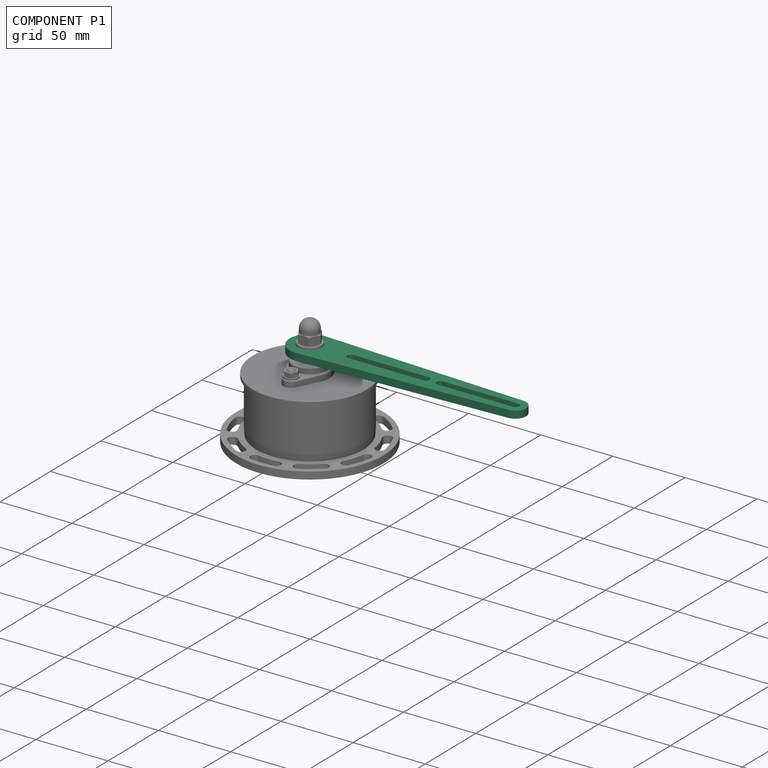
[diagram: component P1 — assembled]
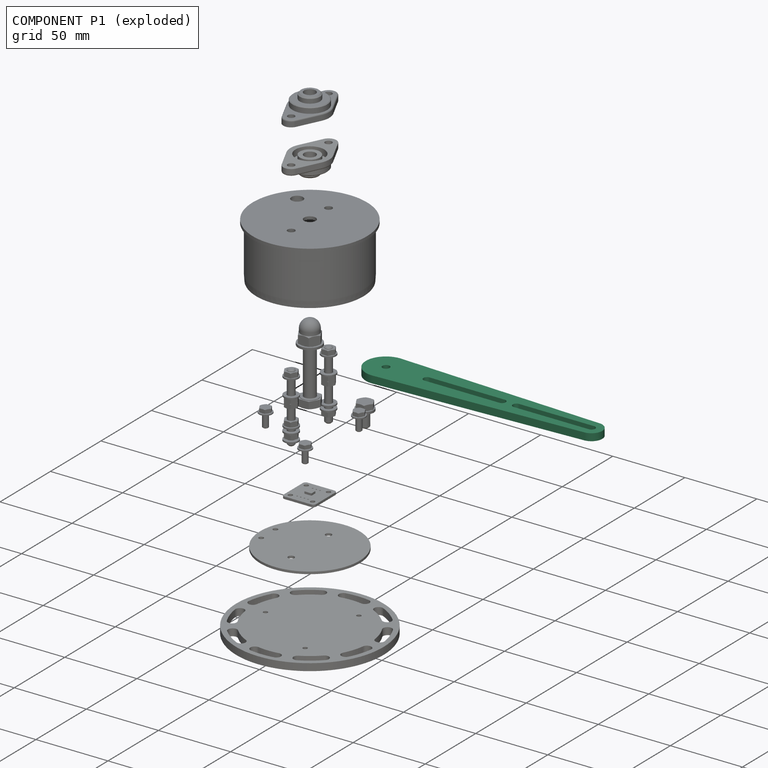
[diagram: component P1 — exploded]
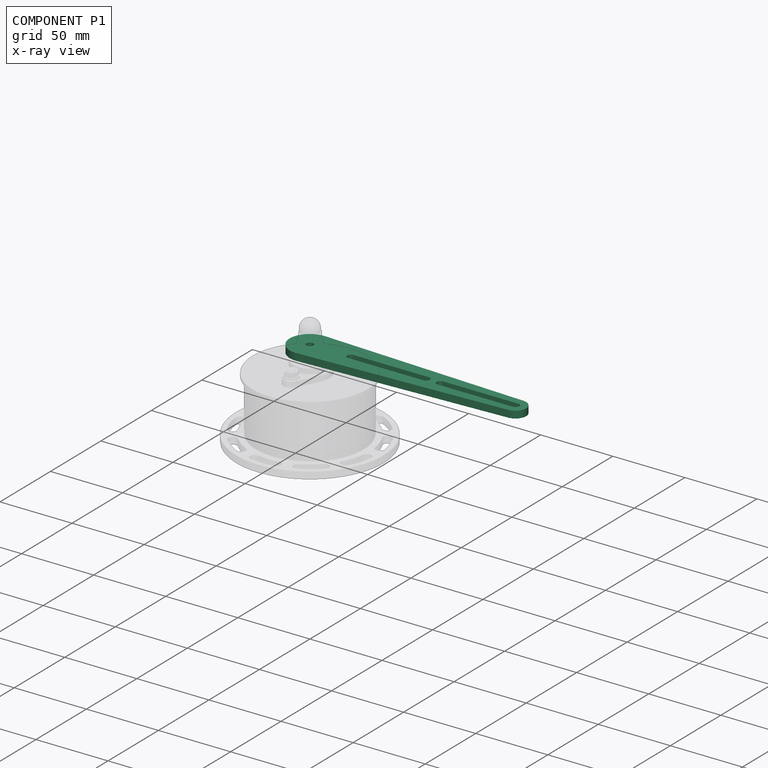
[diagram: component P1 — x-ray view]
COMPONENT P1 — recipe-attached ("Arm001", modeled in this document).
Held by: resting contact with P3 (derived edge); resting contact with P7 (derived edge).
Construction recipe (the document's own serialized feature program — sketch geometry with constraints, then the solid features built on it; lengths are millimeters unless a unit is written):

FEATURE [Sketcher::SketchObject] Sketch018
  ArcFitTolerance = 1e-06
  AttachmentSupport = -> [XY_Plane017]
  FullyConstrained = true
  MakeInternals = false
  MapMode = 5
  sketch-geometry (14):
    g0: ArcOfCircle CenterX=2.562e-13 CenterY=0 CenterZ=0 NormalX=0 NormalY=0 NormalZ=1 AngleXU=0 Radius=14 StartAngle=1.52517 EndAngle=4.75802
    g1: Circle [constr] CenterX=2.562e-13 CenterY=0 CenterZ=0 NormalX=0 NormalY=0 NormalZ=1 AngleXU=0 Radius=150
    g2: ArcOfCircle CenterX=90.5 CenterY=-1e-16 CenterZ=0 NormalX=0 NormalY=0 NormalZ=1 AngleXU=0 Radius=2.55 StartAngle=1.5708 EndAngle=4.71239
    g3: ArcOfCircle CenterX=142.5 CenterY=-2.8e-15 CenterZ=0 NormalX=0 NormalY=0 NormalZ=1 AngleXU=0 Radius=2.55 StartAngle=4.71239 EndAngle=7.85398
    g4: LineSegment StartX=90.5 StartY=2.55 StartZ=0 EndX=142.5 EndY=2.55 EndZ=0
    g5: LineSegment StartX=90.5 StartY=-2.55 StartZ=0 EndX=142.5 EndY=-2.55 EndZ=0
    g6: ArcOfCircle CenterX=142.5 CenterY=-2.8e-15 CenterZ=0 NormalX=0 NormalY=0 NormalZ=1 AngleXU=0 Radius=7.5 StartAngle=4.75802 EndAngle=7.80835
    g7: LineSegment StartX=0.638596 StartY=13.9854 StartZ=0 EndX=142.842 EndY=7.49219 EndZ=0
    g8: LineSegment StartX=142.842 StartY=-7.49219 StartZ=0 EndX=0.638596 EndY=-13.9854 EndZ=0
    g9: ArcOfCircle CenterX=28.5 CenterY=-1e-16 CenterZ=0 NormalX=0 NormalY=0 NormalZ=1 AngleXU=0 Radius=2.55 StartAngle=1.5708 EndAngle=4.71239
    g10: ArcOfCircle CenterX=80.5 CenterY=-5.1e-15 CenterZ=0 NormalX=0 NormalY=0 NormalZ=1 AngleXU=0 Radius=2.55 StartAngle=4.71239 EndAngle=7.85398
    g11: LineSegment StartX=28.5 StartY=2.55 StartZ=0 EndX=80.5 EndY=2.55 EndZ=0
    g12: LineSegment StartX=28.5 StartY=-2.55 StartZ=0 EndX=80.5 EndY=-2.55 EndZ=0
    g13: Circle CenterX=2.562e-13 CenterY=0 CenterZ=0 NormalX=0 NormalY=0 NormalZ=1 AngleXU=0 Radius=2.5
  constraints (32):
    c: Coincident(g0,g-1)
    c: Diameter(g0) = 28
    c: Coincident(g1,g0)
    c: Diameter(g1) = 300
    c: Tangent(g2,g4) = 1.5708
    c: Tangent(g2,g5) = -1.5708
    c: Tangent(g3,g4) = 1.5708
    c: Tangent(g3,g5) = -1.5708
    c: Equal(g2,g3)
    c: Horizontal(g5)
    c: PointOnObject(g2,g-1)
    c: Tangent(g6,g7) = 1.5708
    c: Tangent(g6,g8) = 1.5708
    c: Tangent(g0,g8) = 1.5708
    c: Tangent(g0,g7) = 1.5708
    c: Tangent(g6,g1)
    c: Tangent(g9,g11) = 1.5708
    c: Tangent(g9,g12) = -1.5708
    c: Tangent(g10,g11) = 1.5708
    c: Tangent(g10,g12) = -1.5708
    c: Equal(g9,g10)
    c: Horizontal(g12)
    c: PointOnObject(g9,g-1)
    c: Radius(g10) = 2.55
    c: Equal(g12,g5)
    c: DistanceX(g10,g2) = 10
    c: DistanceX(g2,g3) = 52
    c: Radius(g6) = 7.5
    c: Coincident(g3,g6)
    c: Equal(g10,g2)
    c: Coincident(g13,g0)
    c: Diameter(g13) = 5
FEATURE [PartDesign::Pad] Pad015
  Direction = (0,0,1)
  Length = 5
  Length2 = 10
  Profile = -> Sketch018
  ReferenceAxis = -> Sketch018 [N_Axis]
  Suppressed = false
  Type = 0
FEATURE [PartDesign::Body] Body014  label="Arm001"
  AllowCompound = false
  Group = -> [Sketch018,Pad015]
  Origin = -> Origin017
  Placement = pos=(0,0,51) rot=(0,0,1;0rad)
  Tip = -> Pad015
PROVENANCE & LICENSES
Assembly and component geometry: a FreeCAD (.FCStd) document from a public repository crawl; components, placements and joints were extracted with FreeCAD and each solid tessellated.
Construction recipes: the document's own serialized feature recipes (and, for linked parts, the recipes of companion documents from the same project).
License: as declared in the source repository (recorded in the dataset sidecar).
Joints: native FreeCAD joints and A2plus constraints are mapped to standard mate types; edges marked 'derived from contact' connect touching components and are measured from the geometry, not modeled.
Verification: 7 of this assembly's 8 components carry a construction recipe (7 from this document itself); the rest are geometry-only. Every component's tessellation passed the extraction mesh gates (mesh-volume checksum against the B-rep where available, bounding-box inflation <= 2%).
Renders: orthographic iso camera (az 35 / el 25); the floor grid conveys scale (grid pitch printed in each image; no ruler). In the exploded view each component is displaced by its stored offset vector: the offsets alone carry the explosion direction (mate normal/axis signs are not orientation cues and do not encode it), and separation distances are assigned per mate-chain, not proportionally to assembly-order depth.
